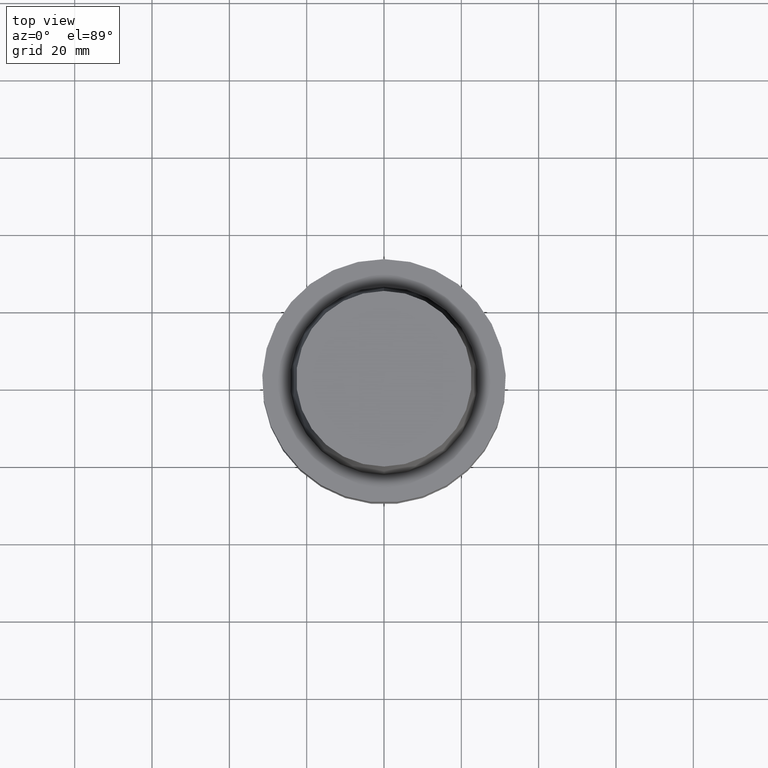
[diagram: clean part render]
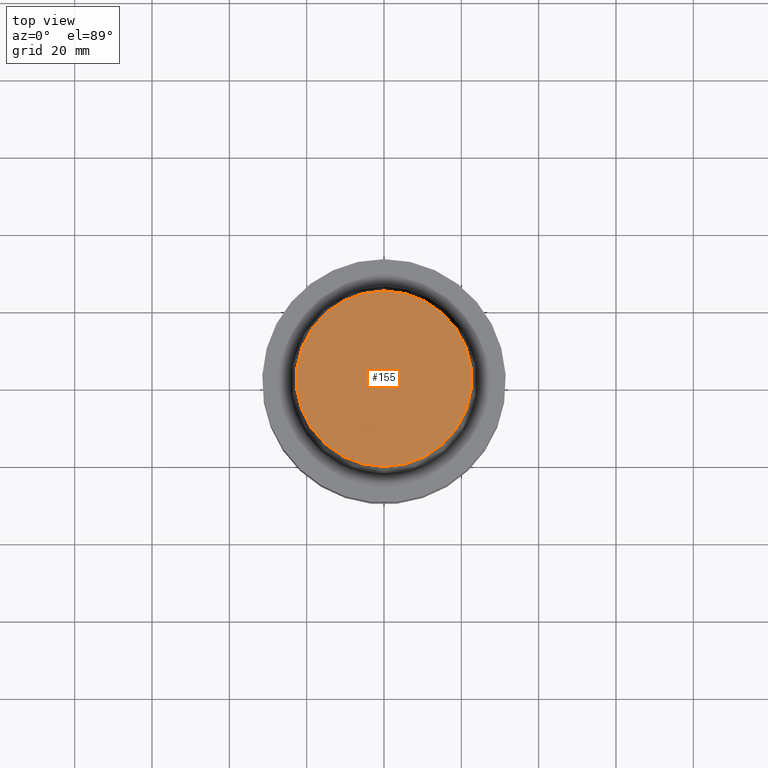
[diagram: same view with one face highlighted and labeled with its STEP entity id]
A machine part, top view. The second image highlights one B-rep face of the part: STEP entity #155.
In plain terms, the highlighted planar face has unit normal (-0, 0, 1).
Its self-contained STEP definition (entity closure, byte-faithful):
#99=EDGE_CURVE('Unnamed[1]',#246,#246,#247,.T.);
#155=ADVANCED_FACE('Unnamed[1]',(#334),#335,.T.);
#246=VERTEX_POINT('',#444);
#247=CIRCLE('',#445,22.715);
#334=FACE_OUTER_BOUND('',#553,.T.);
#335=PLANE('',#554);
#444=CARTESIAN_POINT('',(-1.95943487863576E-015,22.715,32.0));
#445=AXIS2_PLACEMENT_3D('',#664,#665,#666);
#553=EDGE_LOOP('',(#765));
#554=AXIS2_PLACEMENT_3D('',#766,#767,#768);
#664=CARTESIAN_POINT('',(-1.95943487863576E-015,-3.91886975727153E-015,32.0));
#665=DIRECTION('',(-6.12323399573676E-017,-1.22464679914735E-016,1.0));
#666=DIRECTION('',(-1.23259516440783E-032,1.0,1.22464679914735E-016));
#765=ORIENTED_EDGE('',*,*,#99,.T.);
#766=CARTESIAN_POINT('',(-1.95943487863576E-015,11.3575,32.0));
#767=DIRECTION('',(-6.12323399573677E-017,9.72362339746437E-016,1.0));
#768=DIRECTION('',(5.47128686183263E-032,1.0,-9.72362339746437E-016));